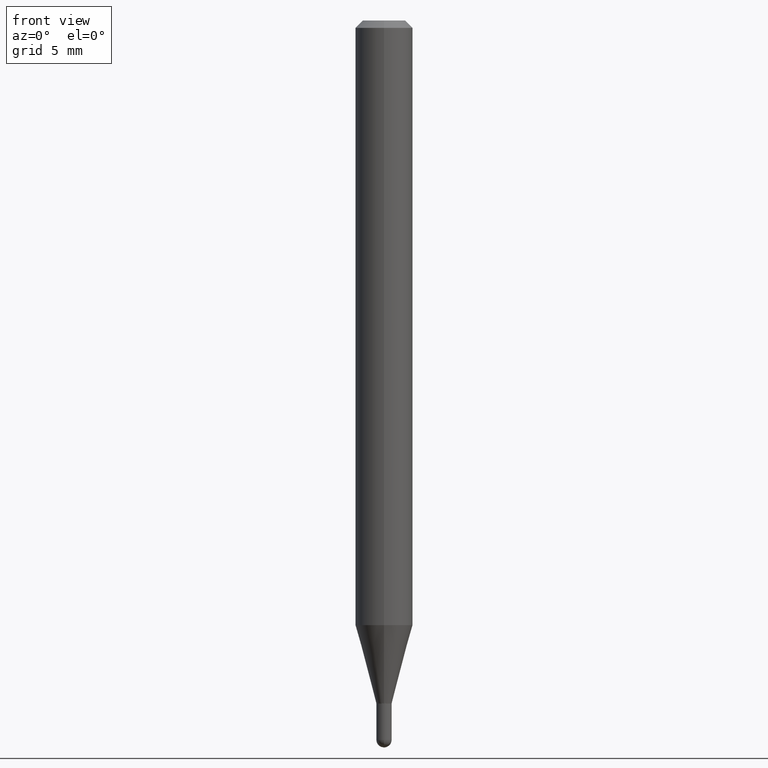
[diagram: clean part render]
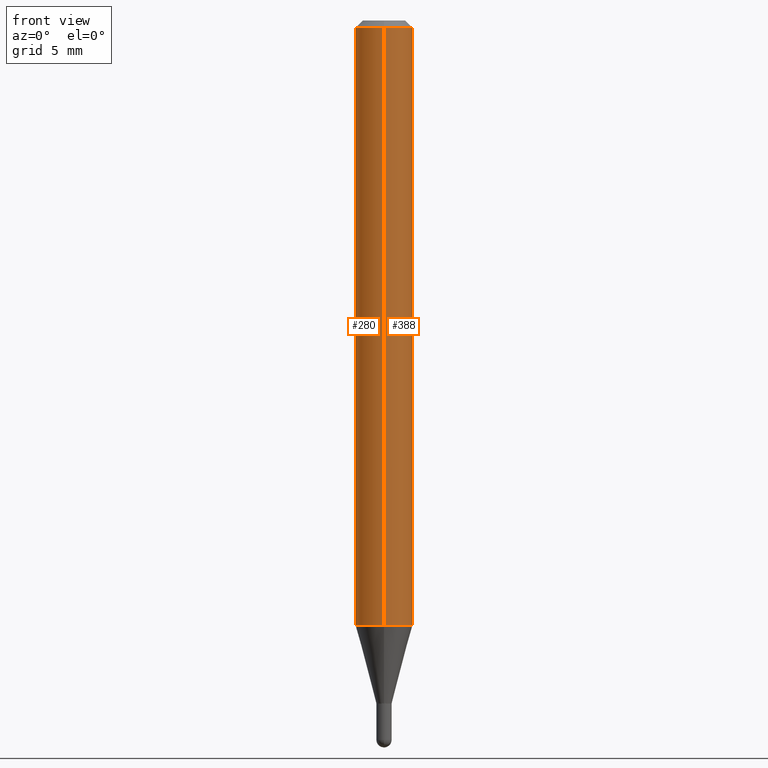
[diagram: same view with one multi-face feature highlighted, each face labeled with its STEP entity id]
A machine part, front view. The highlighted faces form ONE feature: a constant-radius fillet chain: 2 tangent blend faces with common blend radius 1.4999 mm. The faces share edges in the B-rep.
Their STEP definitions:
[1] entity #388 (Cylinder):
#15 = EDGE_CURVE ( 'NONE', #334, #320, #116, .T. ) ;
#39 = VECTOR ( 'NONE', #502, 39.37007874015748143 ) ;
#52 = CARTESIAN_POINT ( 'NONE',  ( -4.123439461173739834E-16, -0.05904999999999999832, 2.061721467343250858E-16 ) ) ;
#63 = CARTESIAN_POINT ( 'NONE',  ( 4.195754854663697655E-16, 0.05904999999999994975, -0.01500000000000028741 ) ) ;
#68 = CARTESIAN_POINT ( 'NONE',  ( 4.195754854663694204E-16, 0.05904999999999564764, -1.244224700957513807 ) ) ;
#74 = DIRECTION ( 'NONE',  ( -2.445466752382438032E-29, 3.491484280005505170E-15, 1.000000000000000000 ) ) ;
#99 = CARTESIAN_POINT ( 'NONE',  ( 4.195754854663390985E-16, 0.05904999999999999832, -2.061721467343250858E-16 ) ) ;
#116 = CIRCLE ( 'NONE', #189, 0.05904999999999999832 ) ;
#122 = LINE ( 'NONE', #52, #359 ) ;
#140 = LINE ( 'NONE', #99, #39 ) ;
#171 = EDGE_CURVE ( 'NONE', #258, #334, #122, .T. ) ;
#175 = DIRECTION ( 'NONE',  ( -2.445466752382438312E-29, 3.491484280005505565E-15, 1.000000000000000000 ) ) ;
#179 = CIRCLE ( 'NONE', #338, 0.05904999999999999832 ) ;
#183 = CYLINDRICAL_SURFACE ( 'NONE', #438, 0.05904999999999999832 ) ;
#189 = AXIS2_PLACEMENT_3D ( 'NONE', #435, #352, #355 ) ;
#218 = CARTESIAN_POINT ( 'NONE',  ( -4.123439461173736383E-16, -0.05905000000000005383, -0.01499999999999987454 ) ) ;
#229 = ORIENTED_EDGE ( 'NONE', *, *, #171, .F. ) ;
#253 = CARTESIAN_POINT ( 'NONE',  ( -4.123439461173436122E-16, -0.05905000000000434207, -1.244224700957513363 ) ) ;
#258 = VERTEX_POINT ( 'NONE', #253 ) ;
#271 = DIRECTION ( 'NONE',  ( -2.445466752382438032E-29, 3.491484280005505170E-15, 1.000000000000000000 ) ) ;
#279 = EDGE_LOOP ( 'NONE', ( #462, #304, #469, #229 ) ) ;
#304 = ORIENTED_EDGE ( 'NONE', *, *, #349, .T. ) ;
#310 = FACE_OUTER_BOUND ( 'NONE', #279, .T. ) ;
#312 = CARTESIAN_POINT ( 'NONE',  ( 3.042710138684580835E-29, -4.344190984187709840E-15, -1.244224700957513585 ) ) ;
#320 = VERTEX_POINT ( 'NONE', #63 ) ;
#334 = VERTEX_POINT ( 'NONE', #218 ) ;
#338 = AXIS2_PLACEMENT_3D ( 'NONE', #312, #74, #431 ) ;
#343 = DIRECTION ( 'NONE',  ( -6.982962677686265922E-15, -1.000000000000000000, 3.491484280005505170E-15 ) ) ;
#349 = EDGE_CURVE ( 'NONE', #353, #320, #140, .T. ) ;
#352 = DIRECTION ( 'NONE',  ( -2.445466752382438032E-29, 3.491484280005505170E-15, 1.000000000000000000 ) ) ;
#353 = VERTEX_POINT ( 'NONE', #68 ) ;
#355 = DIRECTION ( 'NONE',  ( -6.982962677686265922E-15, -1.000000000000000000, 3.505890868245046092E-15 ) ) ;
#359 = VECTOR ( 'NONE', #175, 39.37007874015748143 ) ;
#388 = ADVANCED_FACE ( 'NONE', ( #310 ), #183, .T. ) ;
#418 = EDGE_CURVE ( 'NONE', #258, #353, #179, .T. ) ;
#431 = DIRECTION ( 'NONE',  ( -6.982962677686265922E-15, -1.000000000000000000, 4.626330217890369336E-15 ) ) ;
#435 = CARTESIAN_POINT ( 'NONE',  ( 3.668200128573676386E-31, -5.237226420008286401E-17, -0.01500000000000008098 ) ) ;
#438 = AXIS2_PLACEMENT_3D ( 'NONE', #461, #271, #343 ) ;
#461 = CARTESIAN_POINT ( 'NONE',  ( 0.000000000000000000, 0.000000000000000000, 0.000000000000000000 ) ) ;
#462 = ORIENTED_EDGE ( 'NONE', *, *, #418, .T. ) ;
#469 = ORIENTED_EDGE ( 'NONE', *, *, #15, .F. ) ;
#502 = DIRECTION ( 'NONE',  ( -2.445466752382438312E-29, 3.491484280005505565E-15, 1.000000000000000000 ) ) ;
[2] entity #280 (Cylinder):
#30 = DIRECTION ( 'NONE',  ( -6.982962677686265922E-15, -1.000000000000000000, 3.505890868245046092E-15 ) ) ;
#35 = FACE_OUTER_BOUND ( 'NONE', #185, .T. ) ;
#39 = VECTOR ( 'NONE', #502, 39.37007874015748143 ) ;
#52 = CARTESIAN_POINT ( 'NONE',  ( -4.123439461173739834E-16, -0.05904999999999999832, 2.061721467343250858E-16 ) ) ;
#63 = CARTESIAN_POINT ( 'NONE',  ( 4.195754854663697655E-16, 0.05904999999999994975, -0.01500000000000028741 ) ) ;
#68 = CARTESIAN_POINT ( 'NONE',  ( 4.195754854663694204E-16, 0.05904999999999564764, -1.244224700957513807 ) ) ;
#73 = ORIENTED_EDGE ( 'NONE', *, *, #275, .F. ) ;
#86 = ORIENTED_EDGE ( 'NONE', *, *, #349, .F. ) ;
#92 = DIRECTION ( 'NONE',  ( -2.445466752382438032E-29, 3.491484280005505170E-15, 1.000000000000000000 ) ) ;
#96 = DIRECTION ( 'NONE',  ( -2.445466752382438032E-29, 3.491484280005505170E-15, 1.000000000000000000 ) ) ;
#99 = CARTESIAN_POINT ( 'NONE',  ( 4.195754854663390985E-16, 0.05904999999999999832, -2.061721467343250858E-16 ) ) ;
#103 = ORIENTED_EDGE ( 'NONE', *, *, #171, .T. ) ;
#104 = CARTESIAN_POINT ( 'NONE',  ( 0.000000000000000000, 0.000000000000000000, 0.000000000000000000 ) ) ;
#122 = LINE ( 'NONE', #52, #359 ) ;
#132 = CARTESIAN_POINT ( 'NONE',  ( 3.042710138684580835E-29, -4.344190984187709840E-15, -1.244224700957513585 ) ) ;
#137 = AXIS2_PLACEMENT_3D ( 'NONE', #132, #92, #172 ) ;
#140 = LINE ( 'NONE', #99, #39 ) ;
#171 = EDGE_CURVE ( 'NONE', #258, #334, #122, .T. ) ;
#172 = DIRECTION ( 'NONE',  ( -6.982962677686265922E-15, -1.000000000000000000, 4.626330217890369336E-15 ) ) ;
#175 = DIRECTION ( 'NONE',  ( -2.445466752382438312E-29, 3.491484280005505565E-15, 1.000000000000000000 ) ) ;
#177 = CYLINDRICAL_SURFACE ( 'NONE', #404, 0.05904999999999999832 ) ;
#185 = EDGE_LOOP ( 'NONE', ( #86, #234, #103, #73 ) ) ;
#218 = CARTESIAN_POINT ( 'NONE',  ( -4.123439461173736383E-16, -0.05905000000000005383, -0.01499999999999987454 ) ) ;
#225 = DIRECTION ( 'NONE',  ( -2.445466752382438032E-29, 3.491484280005505170E-15, 1.000000000000000000 ) ) ;
#234 = ORIENTED_EDGE ( 'NONE', *, *, #252, .T. ) ;
#252 = EDGE_CURVE ( 'NONE', #353, #258, #492, .T. ) ;
#253 = CARTESIAN_POINT ( 'NONE',  ( -4.123439461173436122E-16, -0.05905000000000434207, -1.244224700957513363 ) ) ;
#258 = VERTEX_POINT ( 'NONE', #253 ) ;
#263 = CIRCLE ( 'NONE', #348, 0.05904999999999999832 ) ;
#275 = EDGE_CURVE ( 'NONE', #320, #334, #263, .T. ) ;
#280 = ADVANCED_FACE ( 'NONE', ( #35 ), #177, .T. ) ;
#320 = VERTEX_POINT ( 'NONE', #63 ) ;
#334 = VERTEX_POINT ( 'NONE', #218 ) ;
#337 = DIRECTION ( 'NONE',  ( -6.982962677686265922E-15, -1.000000000000000000, 3.491484280005505170E-15 ) ) ;
#348 = AXIS2_PLACEMENT_3D ( 'NONE', #459, #96, #30 ) ;
#349 = EDGE_CURVE ( 'NONE', #353, #320, #140, .T. ) ;
#353 = VERTEX_POINT ( 'NONE', #68 ) ;
#359 = VECTOR ( 'NONE', #175, 39.37007874015748143 ) ;
#404 = AXIS2_PLACEMENT_3D ( 'NONE', #104, #225, #337 ) ;
#459 = CARTESIAN_POINT ( 'NONE',  ( 3.668200128573676386E-31, -5.237226420008286401E-17, -0.01500000000000008098 ) ) ;
#492 = CIRCLE ( 'NONE', #137, 0.05904999999999999832 ) ;
#502 = DIRECTION ( 'NONE',  ( -2.445466752382438312E-29, 3.491484280005505565E-15, 1.000000000000000000 ) ) ;